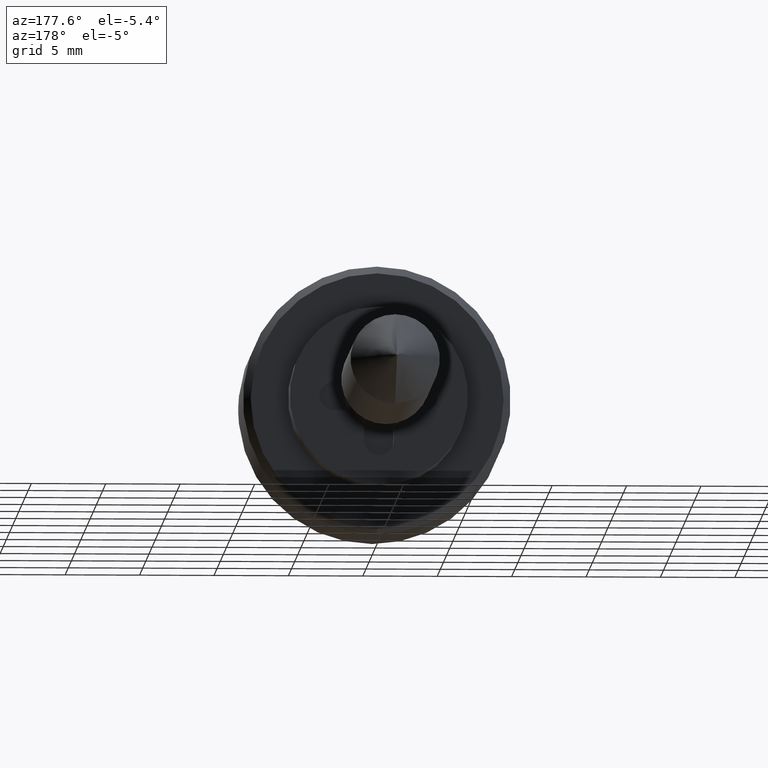
[diagram: clean part render]
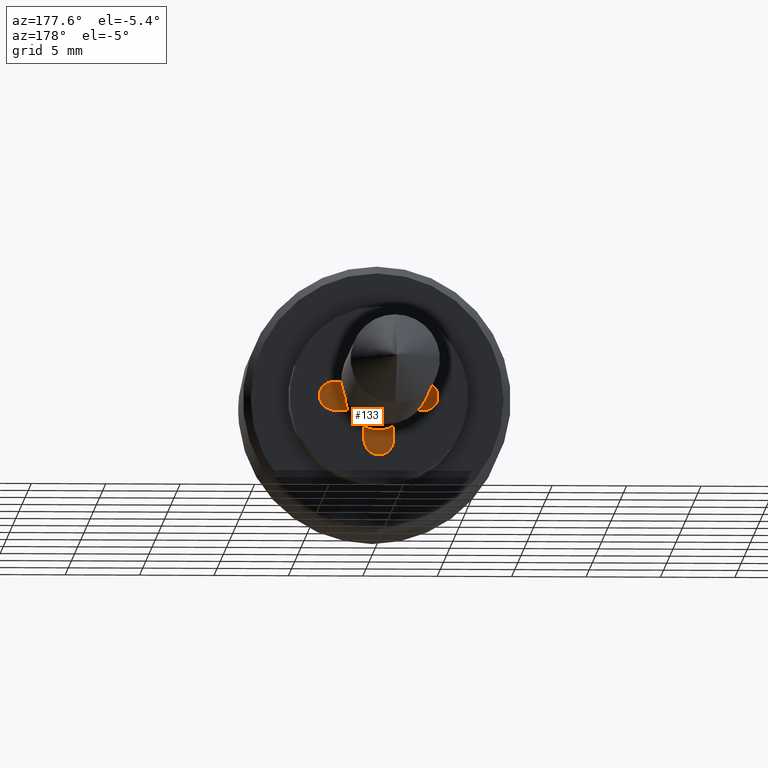
[diagram: same view with one face highlighted and labeled with its STEP entity id]
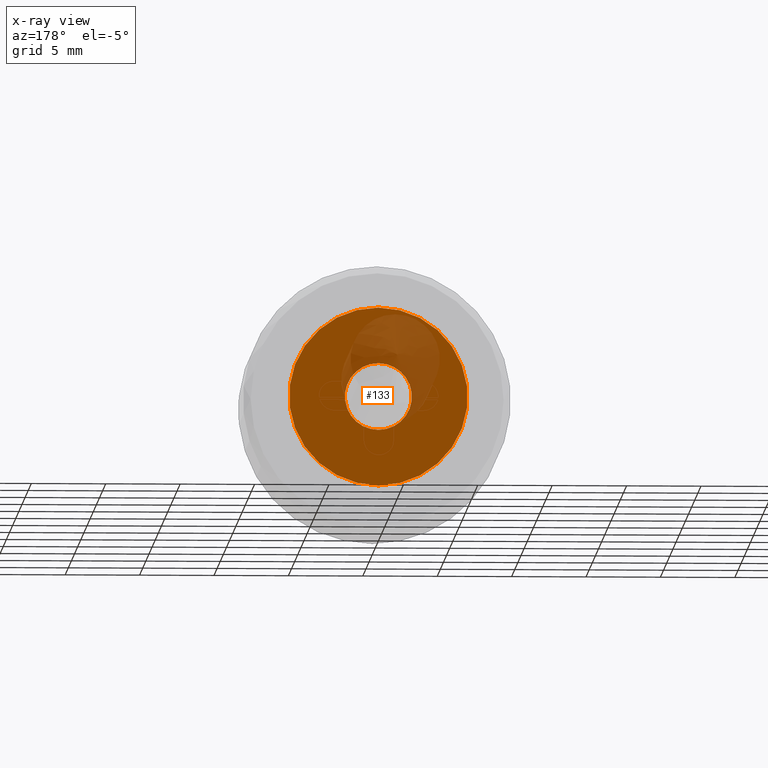
[diagram: x-ray of the same camera — body ghosted, the highlighted face saturated]
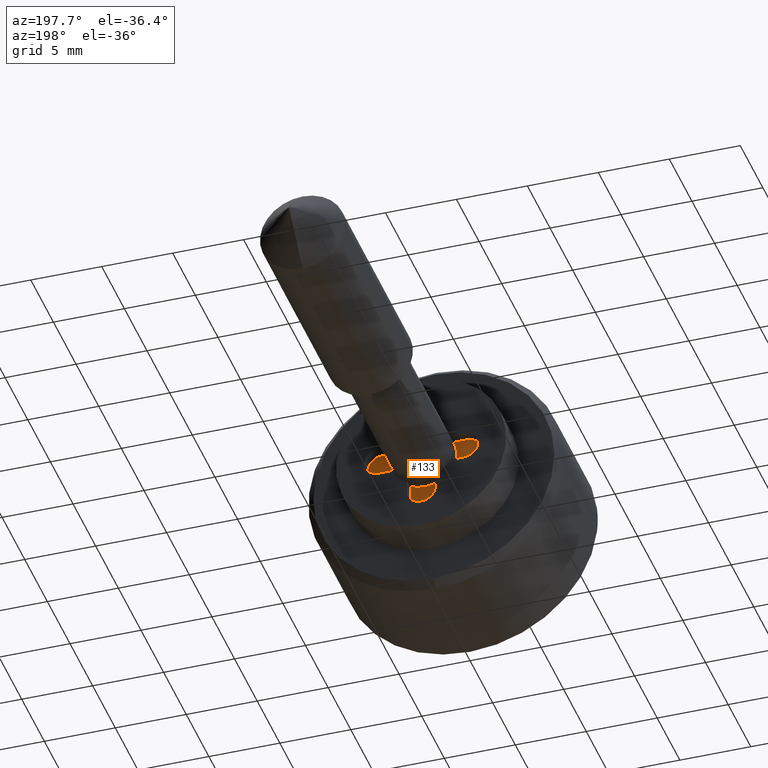
[diagram: same view with one face highlighted and labeled with its STEP entity id]
A machine part, auxiliary view. The second image highlights one B-rep face of the part: STEP entity #133.
The next image is the same camera in x-ray: the body ghosted, the highlighted face saturated — about 24% of this face is hidden behind the body in this view.
A second angle (auxiliary view) of the same face is appended — the face is thin or edge-on in the first view.
In plain terms, the highlighted planar face has unit normal (0, -1, 0).
Its self-contained STEP definition (entity closure, byte-faithful):
#133=ADVANCED_FACE('',(#368,#369),#367,.F.);
#367=PLANE('',#690);
#368=FACE_OUTER_BOUND('',#691,.T.);
#369=FACE_BOUND('',#692,.T.);
#687=CARTESIAN_POINT('',(0.00000000000E+00,-1.24707658145E+01,7.80000000000E+00));
#688=DIRECTION('',(-1.00000000000E+00,0.00000000000E+00,0.00000000000E+00));
#689=DIRECTION('',(0.00000000000E+00,1.00000000000E+00,0.00000000000E+00));
#690=AXIS2_PLACEMENT_3D('',#687,#688,#689);
#691=EDGE_LOOP('',(#942,#943));
#692=EDGE_LOOP('',(#944,#945));
#942=ORIENTED_EDGE('',*,*,#1088,.T.);
#943=ORIENTED_EDGE('',*,*,#1089,.T.);
#944=ORIENTED_EDGE('',*,*,#1090,.F.);
#945=ORIENTED_EDGE('',*,*,#1091,.F.);
#1088=EDGE_CURVE('',#1518,#1519,#1520,.T.);
#1089=EDGE_CURVE('',#1519,#1518,#1526,.T.);
#1090=EDGE_CURVE('',#1532,#1533,#1534,.T.);
#1091=EDGE_CURVE('',#1533,#1532,#1540,.T.);
#1518=VERTEX_POINT('',#2031);
#1519=VERTEX_POINT('',#2032);
#1520=CIRCLE('',#2036,6.00000000000E+00);
#1526=CIRCLE('',#2040,6.00000000000E+00);
#1532=VERTEX_POINT('',#2041);
#1533=VERTEX_POINT('',#2042);
#1534=CIRCLE('',#2046,2.25000000000E+00);
#1540=CIRCLE('',#2050,2.25000000000E+00);
#2031=CARTESIAN_POINT('',(0.00000000000E+00,0.00000000000E+00,6.00000000000E+00));
#2032=CARTESIAN_POINT('',(0.00000000000E+00,1.18423789293E-15,-6.00000000000E+00));
#2033=CARTESIAN_POINT('',(0.00000000000E+00,0.00000000000E+00,0.00000000000E+00));
#2034=DIRECTION('',(1.00000000000E+00,0.00000000000E+00,-0.00000000000E+00));
#2035=DIRECTION('',(0.00000000000E+00,-1.22460635382E-16,1.00000000000E+00));
#2036=AXIS2_PLACEMENT_3D('',#2033,#2034,#2035);
#2037=CARTESIAN_POINT('',(0.00000000000E+00,0.00000000000E+00,0.00000000000E+00));
#2038=DIRECTION('',(1.00000000000E+00,0.00000000000E+00,-0.00000000000E+00));
#2039=DIRECTION('',(0.00000000000E+00,-1.22460635382E-16,1.00000000000E+00));
#2040=AXIS2_PLACEMENT_3D('',#2037,#2038,#2039);
#2041=CARTESIAN_POINT('',(0.00000000000E+00,1.48029736617E-16,2.25000000000E+00));
#2042=CARTESIAN_POINT('',(0.00000000000E+00,0.00000000000E+00,-2.25000000000E+00));
#2043=CARTESIAN_POINT('',(0.00000000000E+00,0.00000000000E+00,0.00000000000E+00));
#2044=DIRECTION('',(1.00000000000E+00,0.00000000000E+00,0.00000000000E+00));
#2045=DIRECTION('',(0.00000000000E+00,-1.22460635382E-16,-1.00000000000E+00));
#2046=AXIS2_PLACEMENT_3D('',#2043,#2044,#2045);
#2047=CARTESIAN_POINT('',(0.00000000000E+00,0.00000000000E+00,0.00000000000E+00));
#2048=DIRECTION('',(1.00000000000E+00,0.00000000000E+00,0.00000000000E+00));
#2049=DIRECTION('',(0.00000000000E+00,-1.22460635382E-16,-1.00000000000E+00));
#2050=AXIS2_PLACEMENT_3D('',#2047,#2048,#2049);